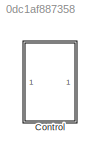
MODEL slx_0dc1af887358
KIND model
CONFIG AbsTol = auto
CONFIG EnableMultiTasking = off
CONFIG FixedStep = auto
CONFIG MaxStep = auto
CONFIG MinStep = auto
CONFIG RelTol = 1e-3
CONFIG SampleTimeConstraint = Unconstrained
CONFIG SolverName = VariableStepAuto
CONFIG StartTime = 0.0
CONFIG StopTime = 10.0
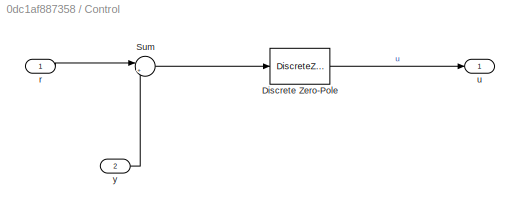
BLOCK [SubSystem] Control
BLOCK [DiscreteZeroPole] Control/Discrete Zero-Pole
  Gain = 0.30424
  Poles = [0.83754+2.4407e-07i, 0.83754-2.4407e-07i]
  SampleTime = Ts
  Zeros = [0.98683+0.16207i;0.98683-0.16207i]
BLOCK [Sum] Control/Sum
  Inputs = |+-
BLOCK [Inport] Control/r
BLOCK [Outport] Control/u
BLOCK [Inport] Control/y
  Port = 2
LINE Control/Discrete Zero-Pole:1 -> Control/u:1
LINE Control/Sum:1 -> Control/Discrete Zero-Pole:1
LINE Control/r:1 -> Control/Sum:1
LINE Control/y:1 -> Control/Sum:2
